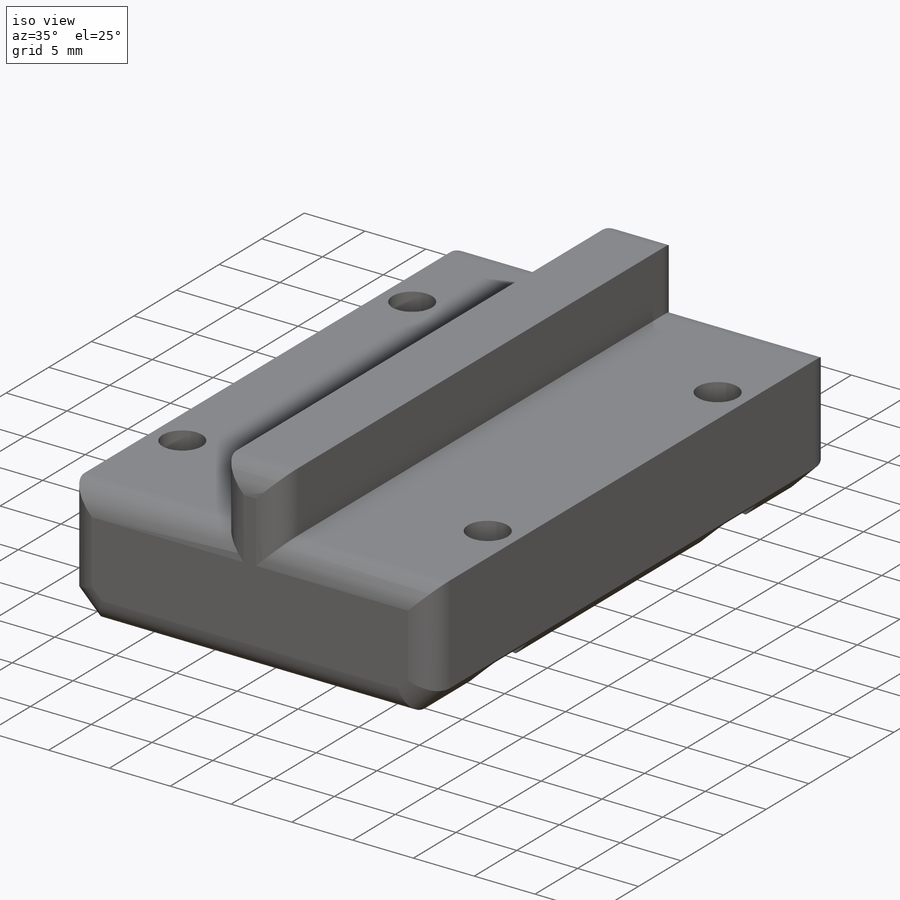
[diagram: iso view]
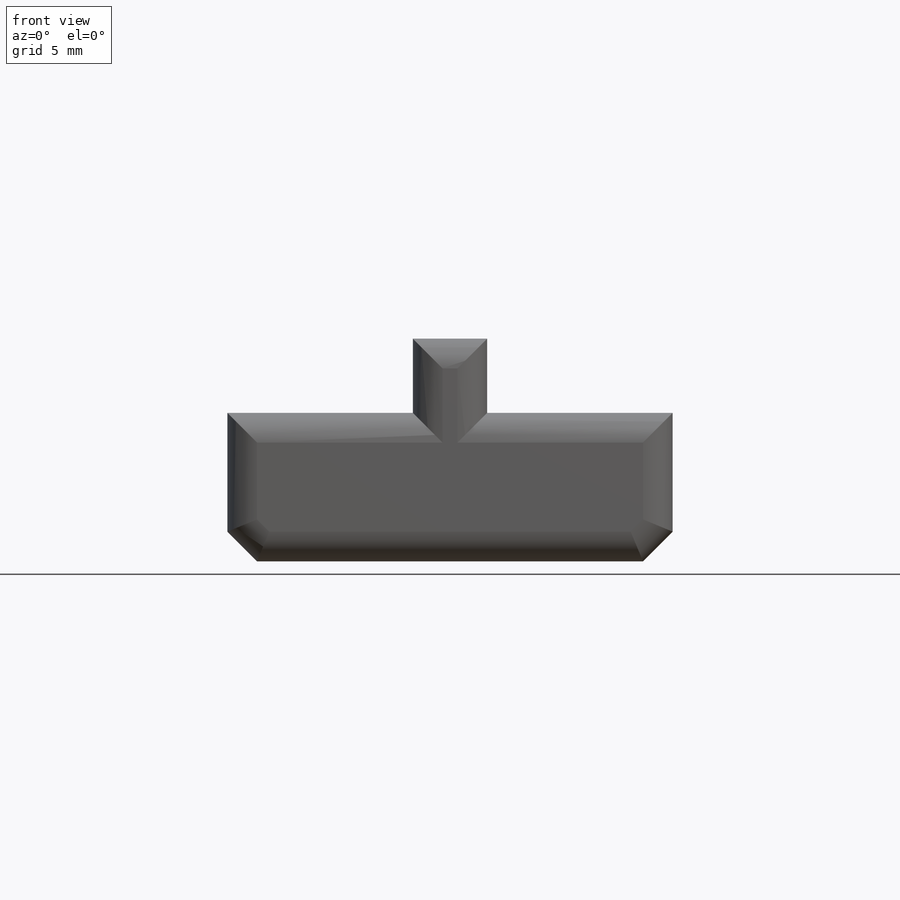
[diagram: front view]
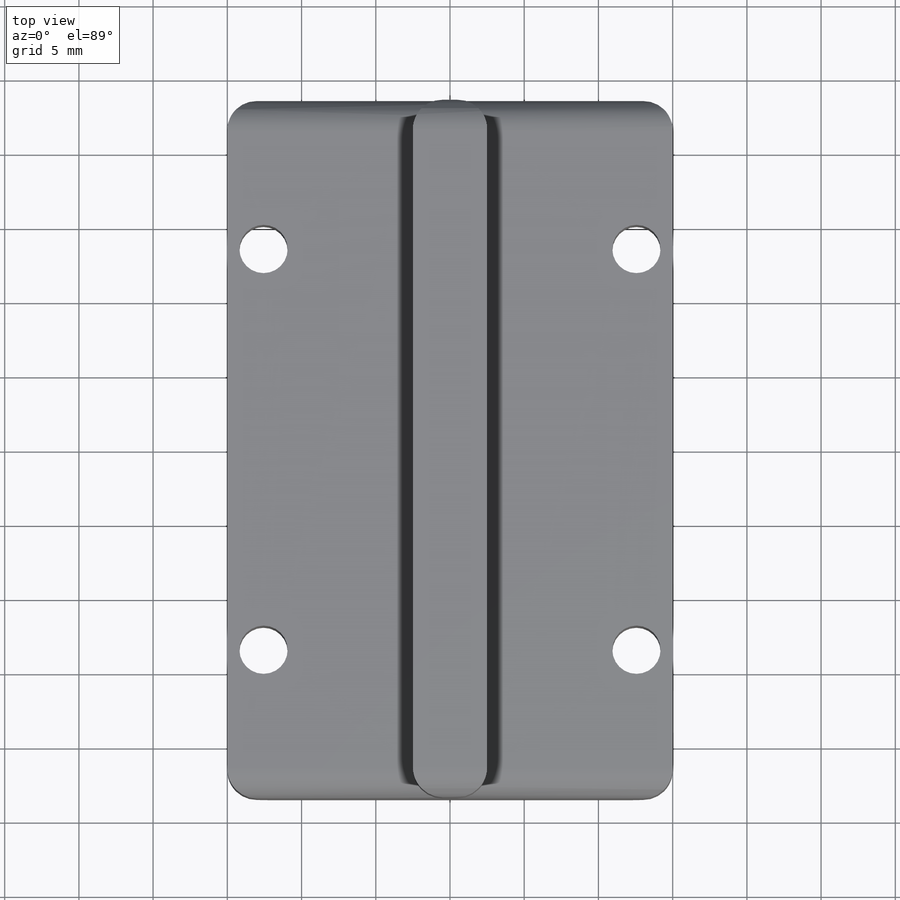
[diagram: top view]
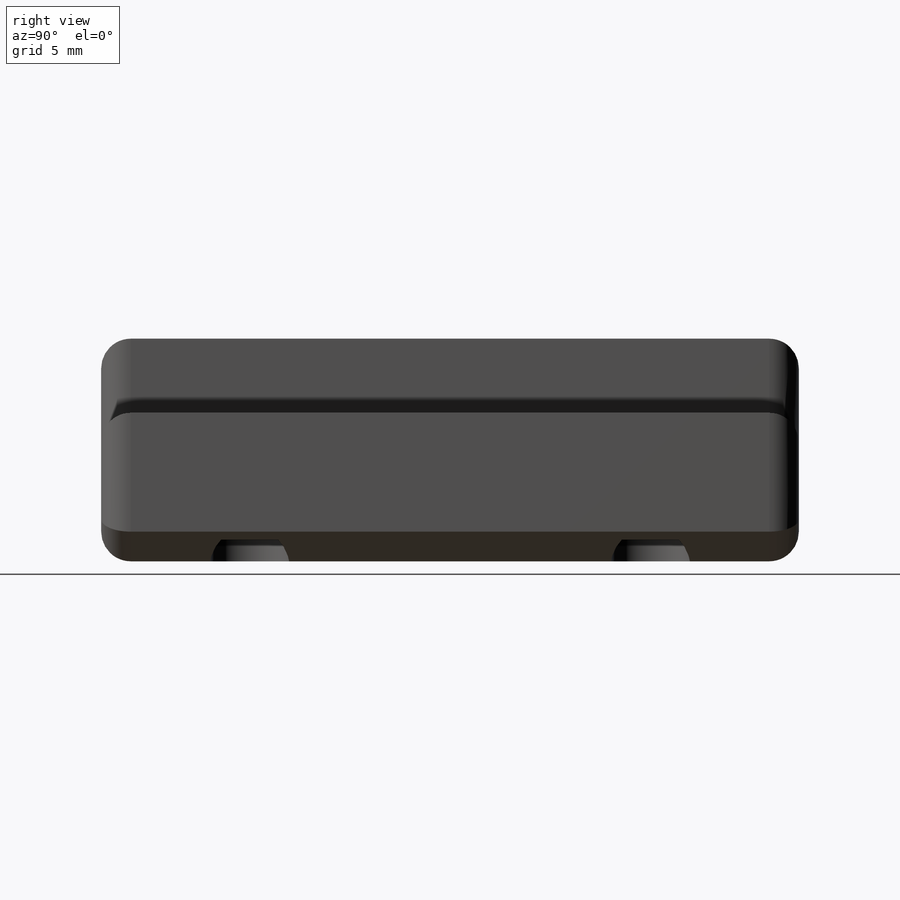
[diagram: right view]
SOLIDWORKS PART (.sldprt)
format: sldprt  version: not decoded by parser v0  size: 388,096 bytes
history: native  units: mm
features: sketch x5, cut_extrude x3, extrude x2, chamfer x2, fillet x2, material x1 (+13 scaffold rows collapsed)
feature tree (28):
  scaffold x13  (default folders/planes/origin — collapsed)
  material  "Material <not specified>"
  sketch  "Sketch1"  dims[D1=30.0mm D2=47.0mm]
  extrude  "Boss-Extrude1"  Depth=10mm
  sketch  "Sketch2"  dims[D1=5.0mm]
  extrude  "Boss-Extrude2"  Depth=5mm
  sketch  "Sketch3"  dims[D7=3.25mm D8=3.25mm D9=3.25mm D10=3.25mm D1=10.0mm D2=2.44mm D3=2.44mm D4=10.0mm D5=10.0mm D6=10.0mm]
  cut_extrude  "Cut-Extrude1"  [1 undecoded]
  sketch  "Sketch4"  dims[D1=5.4mm D2=5.4mm D3=5.4mm D4=5.4mm]
  cut_extrude  "Cut-Extrude2"  Depth=1.45mm
  chamfer  "Chamfer1"  Distance=2mm Angle=45deg
  chamfer  "Chamfer2"  Distance=2mm Angle=45deg
  fillet  "Fillet1"  Radius=2mm
  fillet  "Fillet2"  Radius=2mm
  sketch  "Mobious Logo"
  cut_extrude  "Cut-Extrude6"  Depth=1.5mm
decode coverage: 12 of 14 modeling features carry decoded parameters
note: 1 parameter value undecoded
note: suppression state not decoded; provenance and decode notes live in map.json
